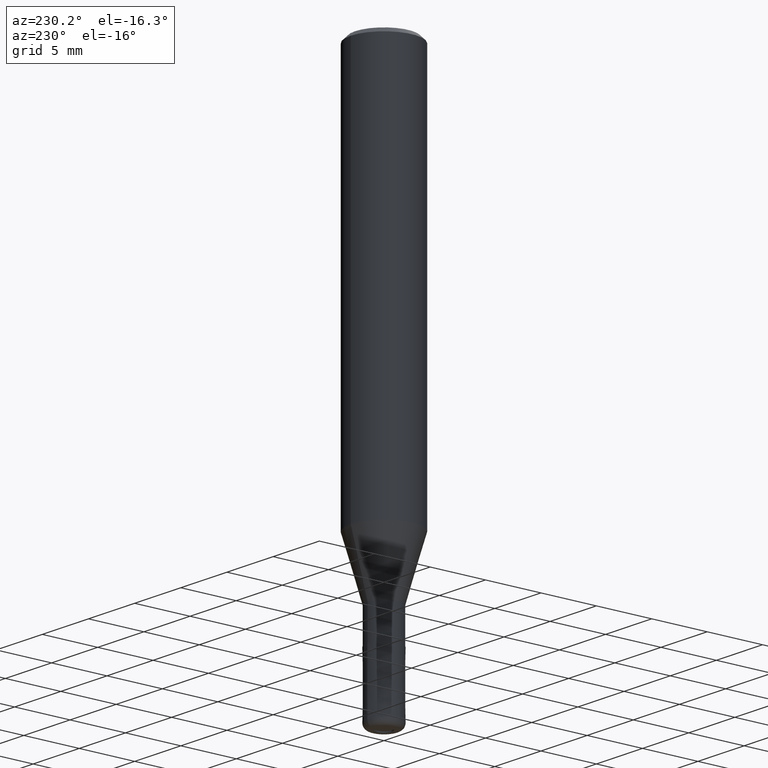
[diagram: clean part render]
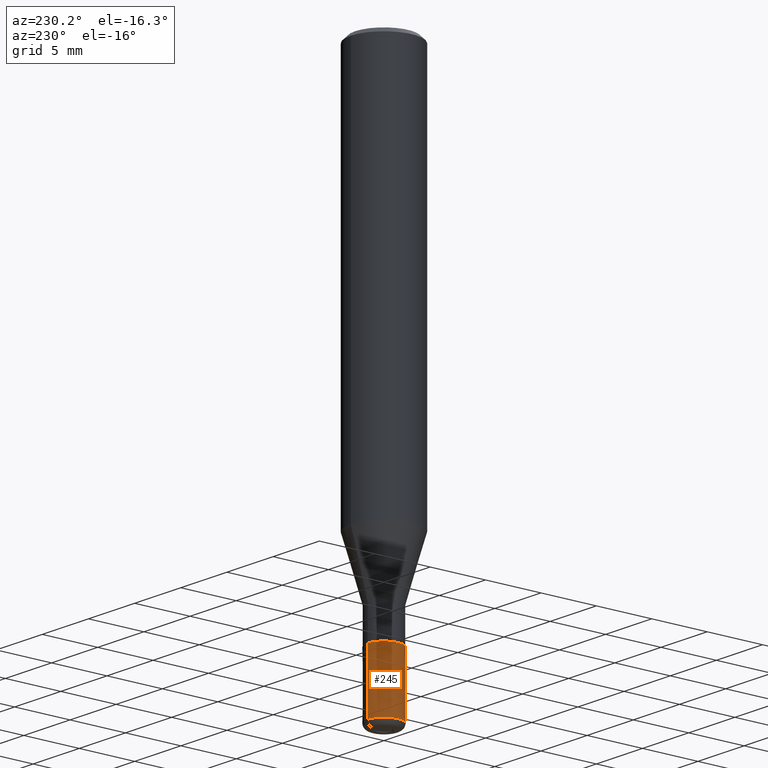
[diagram: same view with one face highlighted and labeled with its STEP entity id]
A machine part, auxiliary view. The second image highlights one B-rep face of the part: STEP entity #245.
In plain terms, the highlighted conical surface has half-angle 0.001 deg.
Its self-contained STEP definition (entity closure, byte-faithful):
#139=EDGE_CURVE('',#151,#195,#343,.T.);
#151=VERTEX_POINT('',#357);
#181=EDGE_CURVE('',#195,#263,#390,.T.);
#195=VERTEX_POINT('',#406);
#243=EDGE_CURVE('',#255,#151,#459,.T.);
#245=ADVANCED_FACE('',(#461),#462,.T.);
#255=VERTEX_POINT('',#472);
#263=VERTEX_POINT('',#482);
#291=EDGE_CURVE('',#255,#263,#517,.T.);
#343=CIRCLE('',#570,1.4999);
#357=CARTESIAN_POINT('',(1.83678707009818E-016,-1.4999,-44.0));
#390=LINE('',#628,#629);
#406=CARTESIAN_POINT('',(0.0,1.4999,-44.0));
#459=LINE('',#718,#719);
#461=FACE_OUTER_BOUND('',#721,.T.);
#462=CONICAL_SURFACE('',#722,1.49995,1.81818181798127E-005);
#472=CARTESIAN_POINT('',(1.83690953073357E-016,-1.5,-49.5));
#482=CARTESIAN_POINT('',(0.0,1.5,-49.5));
#517=CIRCLE('',#789,1.5);
#570=AXIS2_PLACEMENT_3D('',#826,#827,#828);
#628=CARTESIAN_POINT('',(-1.83684830041587E-016,1.49995,-46.75));
#629=VECTOR('',#891,1.0);
#718=CARTESIAN_POINT('',(1.83684830041587E-016,-1.49995,-46.75));
#719=VECTOR('',#977,1.0);
#721=EDGE_LOOP('',(#979,#980,#981,#982));
#722=AXIS2_PLACEMENT_3D('',#983,#984,#985);
#789=AXIS2_PLACEMENT_3D('',#1052,#1053,#1054);
#826=CARTESIAN_POINT('',(0.0,0.0,-44.0));
#827=DIRECTION('',(0.0,0.0,-1.0));
#828=DIRECTION('',(0.0,1.0,0.0));
#891=DIRECTION('',(-2.22655700658151E-021,1.81818181788109E-005,-0.999999999834711));
#977=DIRECTION('',(-2.22655700658151E-021,1.81818181788109E-005,0.999999999834711));
#979=ORIENTED_EDGE('',*,*,#181,.T.);
#980=ORIENTED_EDGE('',*,*,#291,.F.);
#981=ORIENTED_EDGE('',*,*,#243,.T.);
#982=ORIENTED_EDGE('',*,*,#139,.T.);
#983=CARTESIAN_POINT('',(0.0,0.0,-46.75));
#984=DIRECTION('',(0.0,-0.0,-1.0));
#985=DIRECTION('',(0.0,1.0,0.0));
#1052=CARTESIAN_POINT('',(0.0,0.0,-49.5));
#1053=DIRECTION('',(0.0,0.0,-1.0));
#1054=DIRECTION('',(0.0,1.0,0.0));